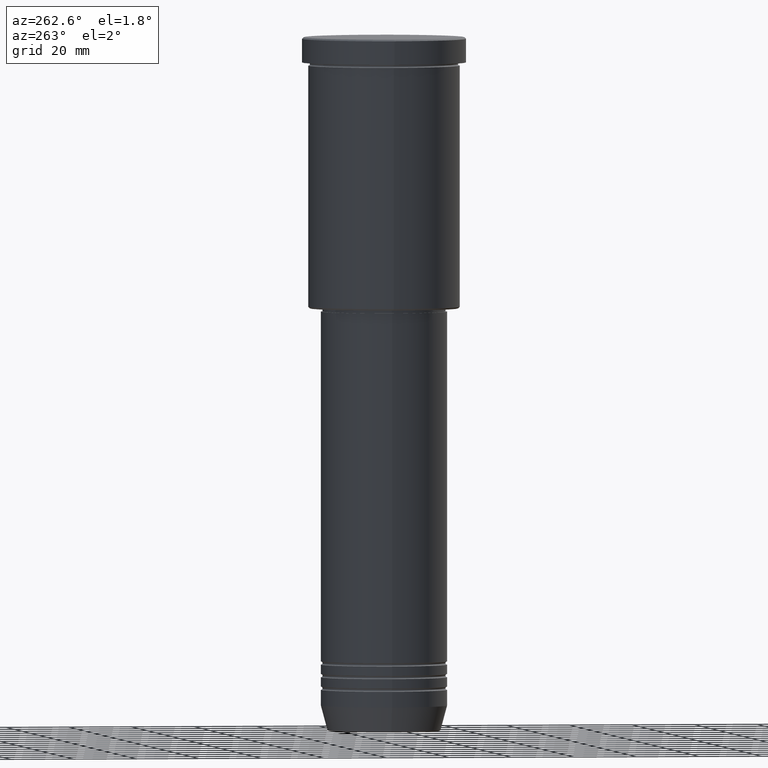
[diagram: clean part render]
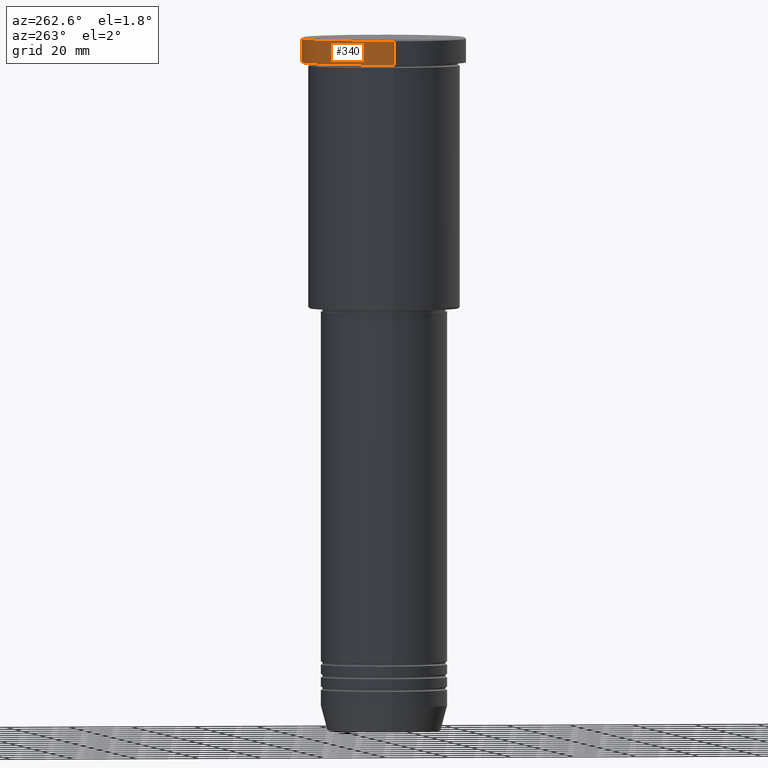
[diagram: same view with one face highlighted and labeled with its STEP entity id]
A machine part, auxiliary view. The second image highlights one B-rep face of the part: STEP entity #340.
In plain terms, the highlighted cylindrical surface (partial cylindrical patch) has radius 26 mm, axis along (-0, -0, 1).
Its self-contained STEP definition (entity closure, byte-faithful):
#7 = CARTESIAN_POINT ( 'NONE',  ( 0.000000000000000000, 0.000000000000000000, -7.999999999999992895 ) ) ;
#68 = EDGE_LOOP ( 'NONE', ( #1073, #326, #1165, #670 ) ) ;
#78 = CARTESIAN_POINT ( 'NONE',  ( 26.00000000000000000, 0.000000000000000000, -0.5000000000000247580 ) ) ;
#167 = VECTOR ( 'NONE', #512, 1000.000000000000000 ) ;
#180 = DIRECTION ( 'NONE',  ( -0.000000000000000000, -0.000000000000000000, 1.000000000000000000 ) ) ;
#204 = VERTEX_POINT ( 'NONE', #614 ) ;
#216 = CARTESIAN_POINT ( 'NONE',  ( -26.00000000000000000, 3.184081677783118191E-15, -7.999999999999992895 ) ) ;
#251 = EDGE_CURVE ( 'NONE', #1032, #204, #870, .T. ) ;
#256 = DIRECTION ( 'NONE',  ( 1.000000000000000000, 0.000000000000000000, 0.000000000000000000 ) ) ;
#275 = DIRECTION ( 'NONE',  ( 0.000000000000000000, 0.000000000000000000, -1.000000000000000000 ) ) ;
#300 = EDGE_CURVE ( 'NONE', #660, #1032, #751, .T. ) ;
#326 = ORIENTED_EDGE ( 'NONE', *, *, #251, .T. ) ;
#340 = ADVANCED_FACE ( 'NONE', ( #520 ), #595, .T. ) ;
#342 = DIRECTION ( 'NONE',  ( -0.000000000000000000, -0.000000000000000000, 1.000000000000000000 ) ) ;
#407 = EDGE_CURVE ( 'NONE', #660, #746, #826, .T. ) ;
#504 = CARTESIAN_POINT ( 'NONE',  ( 0.000000000000000000, 0.000000000000000000, 0.000000000000000000 ) ) ;
#512 = DIRECTION ( 'NONE',  ( -0.000000000000000000, -0.000000000000000000, 1.000000000000000000 ) ) ;
#520 = FACE_OUTER_BOUND ( 'NONE', #68, .T. ) ;
#573 = CARTESIAN_POINT ( 'NONE',  ( 26.00000000000000000, 0.000000000000000000, -7.999999999999992895 ) ) ;
#595 = CYLINDRICAL_SURFACE ( 'NONE', #1137, 26.00000000000000000 ) ;
#608 = CARTESIAN_POINT ( 'NONE',  ( -26.00000000000000000, 3.184081677783118191E-15, 0.000000000000000000 ) ) ;
#614 = CARTESIAN_POINT ( 'NONE',  ( -26.00000000000000000, 3.184081677783118191E-15, -0.5000000000000247580 ) ) ;
#660 = VERTEX_POINT ( 'NONE', #573 ) ;
#670 = ORIENTED_EDGE ( 'NONE', *, *, #407, .F. ) ;
#698 = AXIS2_PLACEMENT_3D ( 'NONE', #1089, #275, #1106 ) ;
#722 = CARTESIAN_POINT ( 'NONE',  ( 26.00000000000000000, 0.000000000000000000, 0.000000000000000000 ) ) ;
#723 = EDGE_CURVE ( 'NONE', #204, #746, #1074, .T. ) ;
#746 = VERTEX_POINT ( 'NONE', #78 ) ;
#751 = CIRCLE ( 'NONE', #1122, 26.00000000000000000 ) ;
#826 = LINE ( 'NONE', #722, #993 ) ;
#870 = LINE ( 'NONE', #608, #167 ) ;
#887 = DIRECTION ( 'NONE',  ( -0.000000000000000000, -0.000000000000000000, 1.000000000000000000 ) ) ;
#993 = VECTOR ( 'NONE', #180, 1000.000000000000000 ) ;
#1032 = VERTEX_POINT ( 'NONE', #216 ) ;
#1071 = DIRECTION ( 'NONE',  ( 1.000000000000000000, 0.000000000000000000, 0.000000000000000000 ) ) ;
#1073 = ORIENTED_EDGE ( 'NONE', *, *, #300, .T. ) ;
#1074 = CIRCLE ( 'NONE', #698, 26.00000000000000000 ) ;
#1089 = CARTESIAN_POINT ( 'NONE',  ( 0.000000000000000000, 0.000000000000000000, -0.5000000000000247580 ) ) ;
#1106 = DIRECTION ( 'NONE',  ( 1.000000000000000000, 0.000000000000000000, 0.000000000000000000 ) ) ;
#1122 = AXIS2_PLACEMENT_3D ( 'NONE', #7, #342, #256 ) ;
#1137 = AXIS2_PLACEMENT_3D ( 'NONE', #504, #887, #1071 ) ;
#1165 = ORIENTED_EDGE ( 'NONE', *, *, #723, .T. ) ;